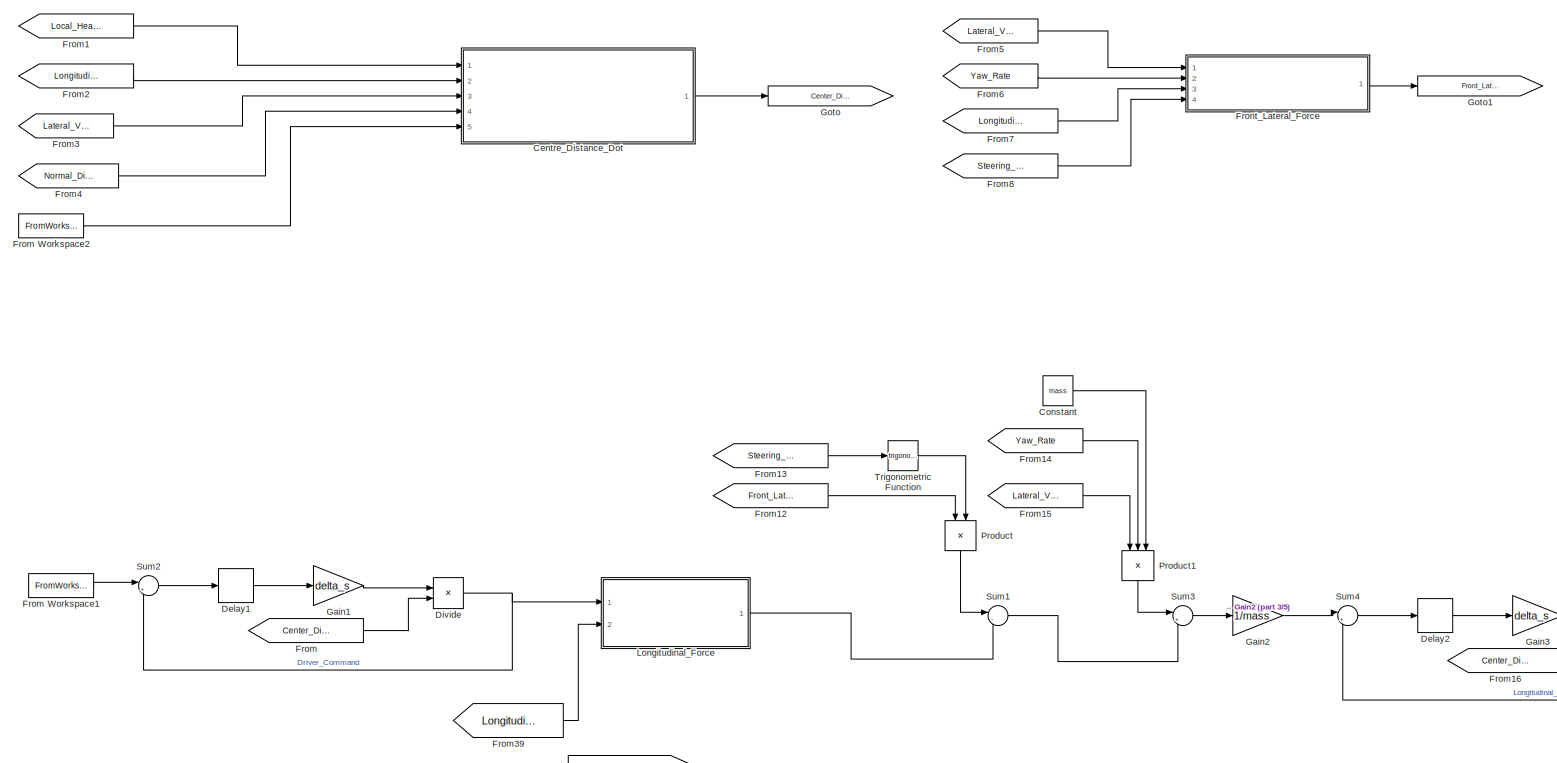
[diagram: root canvas - part 1/5, top left region]
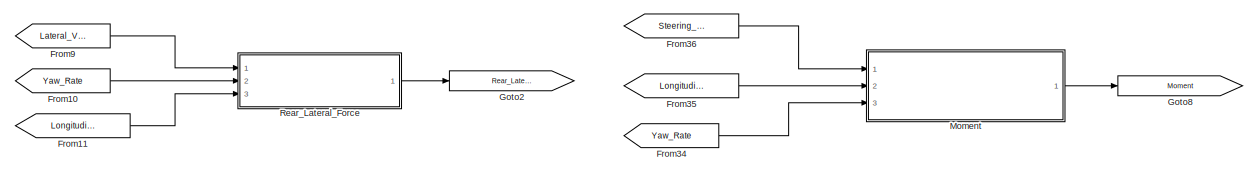
[diagram: root canvas - part 2/5, top right region]
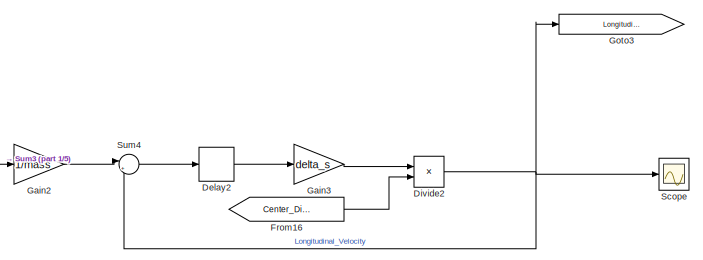
[diagram: root canvas - part 3/5, central region]
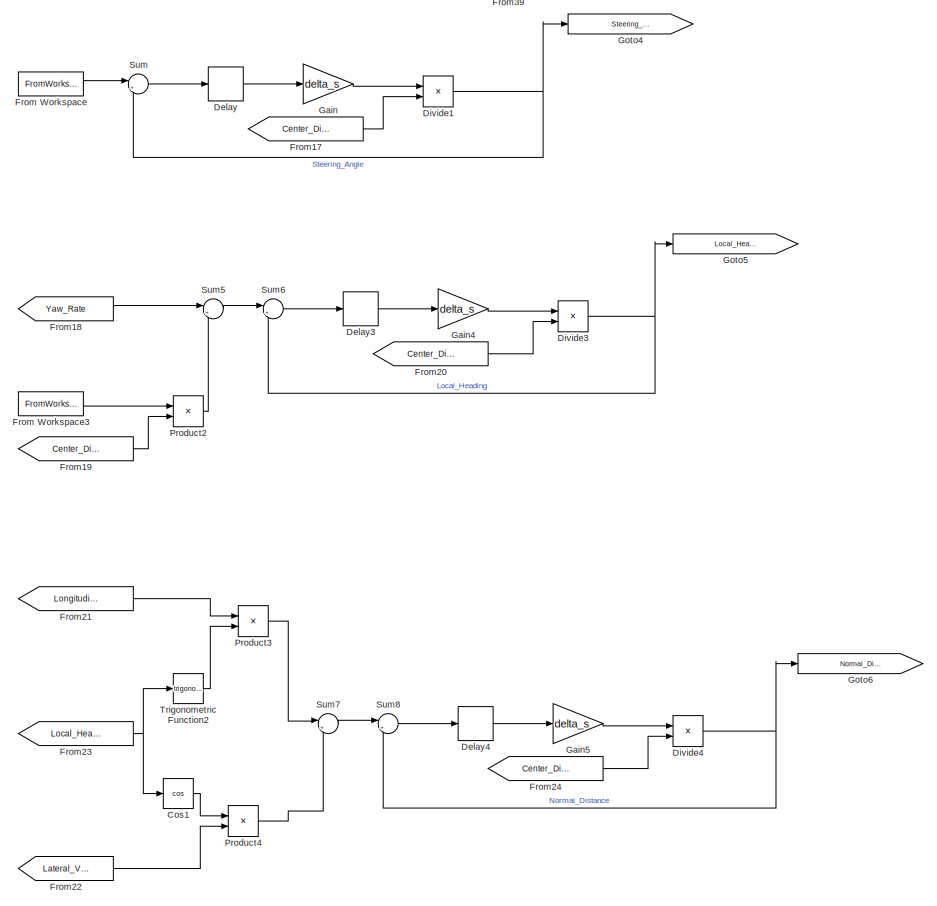
[diagram: root canvas - part 4/5, bottom left region]
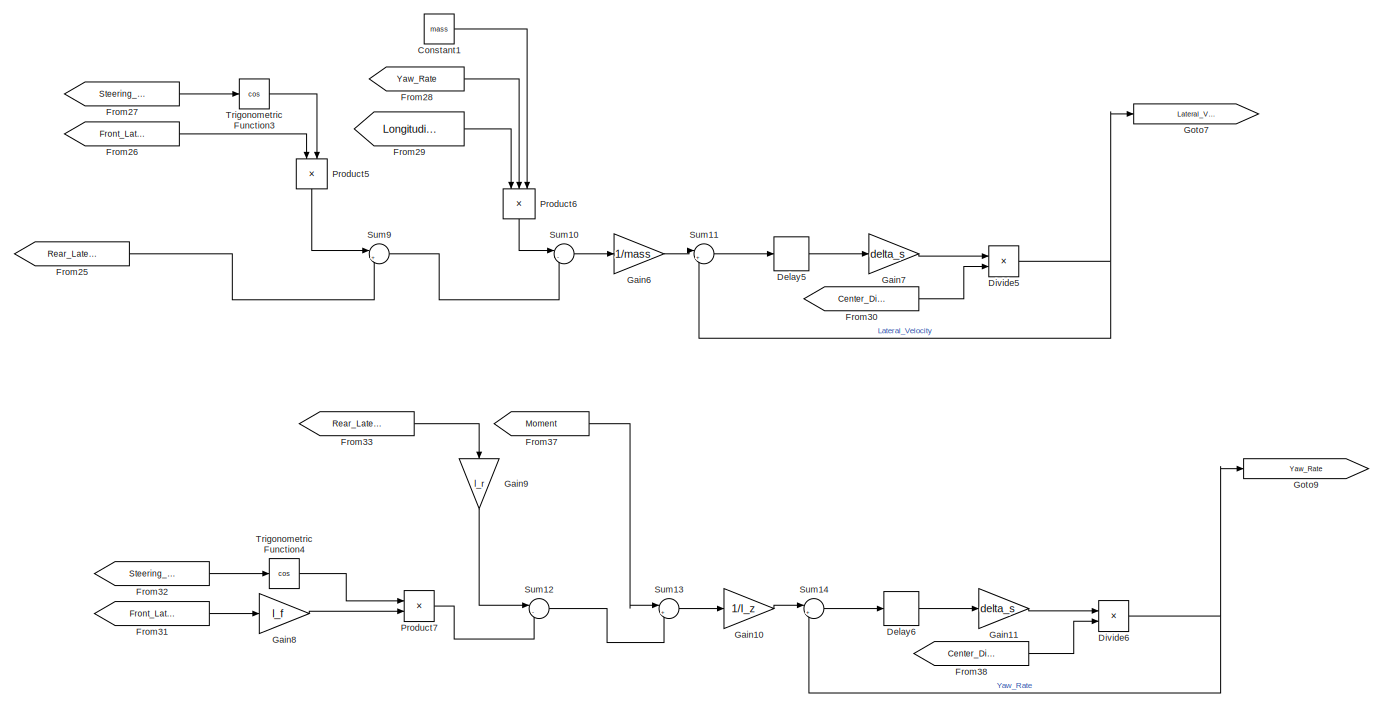
[diagram: root canvas - part 5/5, bottom center region]
MODEL slx_0888dd0f9eb8
KIND model
CONFIG AbsTol = auto
CONFIG EnableMultiTasking = off
CONFIG FixedStep = auto
CONFIG MaxStep = auto
CONFIG MinStep = auto
CONFIG RelTol = 1e-3
CONFIG SampleTimeConstraint = Unconstrained
CONFIG SolverName = VariableStepAuto
CONFIG StartTime = 0.0
CONFIG StopTime = 10.0
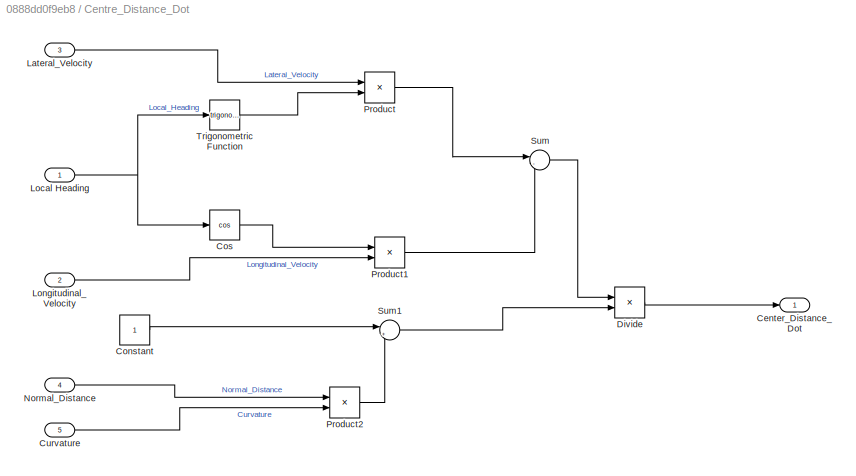
BLOCK [SubSystem] Centre_Distance_Dot
  Ports = [5, 1]
  RequestExecContextInheritance = off
BLOCK [Outport] Centre_Distance_Dot/Center_Distance_Dot
BLOCK [Constant] Centre_Distance_Dot/Constant
BLOCK [Trigonometry] Centre_Distance_Dot/Cos
  Operator = cos
  Ports = [1, 1]
BLOCK [Inport] Centre_Distance_Dot/Curvature
  Port = 5
BLOCK [Product] Centre_Distance_Dot/Divide
  Inputs = */
  Ports = [2, 1]
BLOCK [Inport] Centre_Distance_Dot/Lateral_Velocity
  Port = 3
BLOCK [Inport] Centre_Distance_Dot/Local Heading
BLOCK [Inport] Centre_Distance_Dot/Longitudinal_Velocity
  Port = 2
BLOCK [Inport] Centre_Distance_Dot/Normal_Distance
  Port = 4
BLOCK [Product] Centre_Distance_Dot/Product
  Ports = [2, 1]
BLOCK [Product] Centre_Distance_Dot/Product1
  Ports = [2, 1]
BLOCK [Product] Centre_Distance_Dot/Product2
  Ports = [2, 1]
BLOCK [Sum] Centre_Distance_Dot/Sum
  Inputs = |-+
  Ports = [2, 1]
BLOCK [Sum] Centre_Distance_Dot/Sum1
  Inputs = |+-
  Ports = [2, 1]
BLOCK [Trigonometry] Centre_Distance_Dot/Trigonometric Function
  Ports = [1, 1]
BLOCK [Constant] Constant
  Value = mass
BLOCK [Constant] Constant1
  Value = mass
BLOCK [Trigonometry] Cos1
  Operator = cos
  Ports = [1, 1]
BLOCK [Delay] Delay
  DelayLength = 1
  InitialCondition = 0
  InputPortMap = u0
  Ports = [1, 1]
BLOCK [Delay] Delay1
  DelayLength = 1
  InitialCondition = 0
  InputPortMap = u0
  Ports = [1, 1]
BLOCK [Delay] Delay2
  DelayLength = 1
  InitialCondition = 0
  InputPortMap = u0
  Ports = [1, 1]
BLOCK [Delay] Delay3
  DelayLength = 1
  InitialCondition = 0
  InputPortMap = u0
  Ports = [1, 1]
BLOCK [Delay] Delay4
  DelayLength = 1
  InitialCondition = 0
  InputPortMap = u0
  Ports = [1, 1]
BLOCK [Delay] Delay5
  DelayLength = 1
  InitialCondition = 0
  InputPortMap = u0
  Ports = [1, 1]
BLOCK [Delay] Delay6
  DelayLength = 1
  InitialCondition = 0
  InputPortMap = u0
  Ports = [1, 1]
BLOCK [Product] Divide
  Inputs = */
  Ports = [2, 1]
BLOCK [Product] Divide1
  Inputs = */
  Ports = [2, 1]
BLOCK [Product] Divide2
  Inputs = */
  Ports = [2, 1]
BLOCK [Product] Divide3
  Inputs = */
  Ports = [2, 1]
BLOCK [Product] Divide4
  Inputs = */
  Ports = [2, 1]
BLOCK [Product] Divide5
  Inputs = */
  Ports = [2, 1]
BLOCK [Product] Divide6
  Inputs = */
  Ports = [2, 1]
BLOCK [From] From
  GotoTag = Center_Distance_Dot
BLOCK [FromWorkspace] From Workspace
  VariableName = delta_steer
BLOCK [FromWorkspace] From Workspace1
  VariableName = delta_T
BLOCK [FromWorkspace] From Workspace2
  VariableName = Curvature
BLOCK [FromWorkspace] From Workspace3
  VariableName = Curvature
BLOCK [From] From1
  GotoTag = Local_Heading
BLOCK [From] From10
  GotoTag = Yaw_Rate
BLOCK [From] From11
  GotoTag = Longitudinal_Velocity
BLOCK [From] From12
  GotoTag = Front_Lateral_Force
BLOCK [From] From13
  GotoTag = Steering_Angle
BLOCK [From] From14
  GotoTag = Yaw_Rate
BLOCK [From] From15
  GotoTag = Lateral_Velocity
BLOCK [From] From16
  GotoTag = Center_Distance_Dot
BLOCK [From] From17
  GotoTag = Center_Distance_Dot
BLOCK [From] From18
  GotoTag = Yaw_Rate
BLOCK [From] From19
  GotoTag = Center_Distance_Dot
BLOCK [From] From2
  GotoTag = Longitudinal_Velocity
BLOCK [From] From20
  GotoTag = Center_Distance_Dot
BLOCK [From] From21
  GotoTag = Longitudinal_Velocity
BLOCK [From] From22
  GotoTag = Lateral_Velocity
BLOCK [From] From23
  GotoTag = Local_Heading
BLOCK [From] From24
  GotoTag = Center_Distance_Dot
BLOCK [From] From25
  GotoTag = Rear_Lateral_Force
BLOCK [From] From26
  GotoTag = Front_Lateral_Force
BLOCK [From] From27
  GotoTag = Steering_Angle
BLOCK [From] From28
  GotoTag = Yaw_Rate
BLOCK [From] From29
  GotoTag = Longitudinal_Velocity
BLOCK [From] From3
  GotoTag = Lateral_Velocity
BLOCK [From] From30
  GotoTag = Center_Distance_Dot
BLOCK [From] From31
  GotoTag = Front_Lateral_Force
BLOCK [From] From32
  GotoTag = Steering_Angle
BLOCK [From] From33
  GotoTag = Rear_Lateral_Force
BLOCK [From] From34
  GotoTag = Yaw_Rate
BLOCK [From] From35
  GotoTag = Longitudinal_Velocity
BLOCK [From] From36
  GotoTag = Steering_Angle
BLOCK [From] From37
  GotoTag = Moment
BLOCK [From] From38
  GotoTag = Center_Distance_Dot
BLOCK [From] From39
  GotoTag = Longitudinal_Velocity
BLOCK [From] From4
  GotoTag = Normal_Distance
BLOCK [From] From5
  GotoTag = Lateral_Velocity
BLOCK [From] From6
  GotoTag = Yaw_Rate
BLOCK [From] From7
  GotoTag = Longitudinal_Velocity
BLOCK [From] From8
  GotoTag = Steering_Angle
BLOCK [From] From9
  GotoTag = Lateral_Velocity
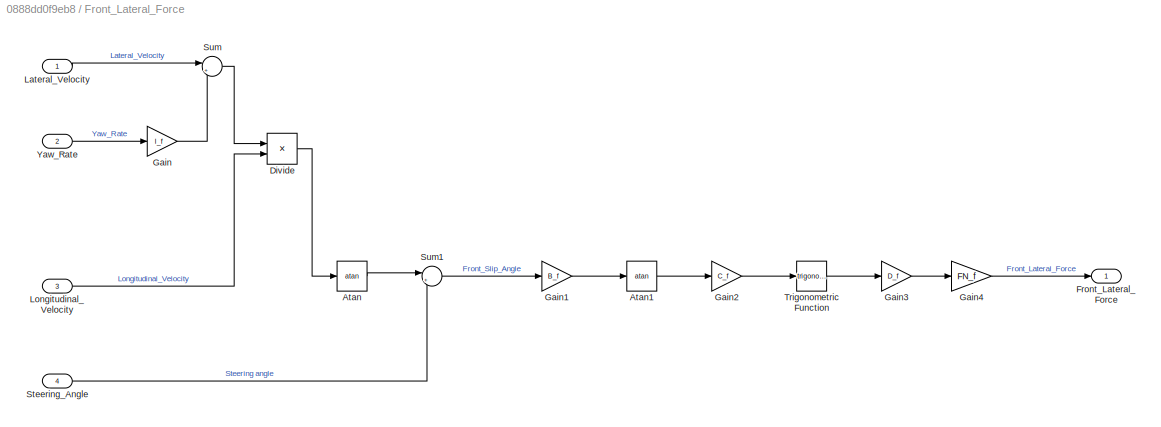
BLOCK [SubSystem] Front_Lateral_Force
  Ports = [4, 1]
  RequestExecContextInheritance = off
BLOCK [Trigonometry] Front_Lateral_Force/Atan
  Operator = atan
  Ports = [1, 1]
BLOCK [Trigonometry] Front_Lateral_Force/Atan1
  Operator = atan
  Ports = [1, 1]
BLOCK [Product] Front_Lateral_Force/Divide
  Inputs = */
  Ports = [2, 1]
BLOCK [Outport] Front_Lateral_Force/Front_Lateral_Force
BLOCK [Gain] Front_Lateral_Force/Gain
  Gain = l_f
BLOCK [Gain] Front_Lateral_Force/Gain1
  Gain = B_f
BLOCK [Gain] Front_Lateral_Force/Gain2
  Gain = C_f
BLOCK [Gain] Front_Lateral_Force/Gain3
  Gain = D_f
BLOCK [Gain] Front_Lateral_Force/Gain4
  Gain = FN_f
BLOCK [Inport] Front_Lateral_Force/Lateral_Velocity
BLOCK [Inport] Front_Lateral_Force/Longitudinal_Velocity
  Port = 3
BLOCK [Inport] Front_Lateral_Force/Steering_Angle
  Port = 4
BLOCK [Sum] Front_Lateral_Force/Sum
  Inputs = |++
  Ports = [2, 1]
BLOCK [Sum] Front_Lateral_Force/Sum1
  Inputs = |+-
  Ports = [2, 1]
BLOCK [Trigonometry] Front_Lateral_Force/Trigonometric Function
  Ports = [1, 1]
BLOCK [Inport] Front_Lateral_Force/Yaw_Rate
  Port = 2
BLOCK [Gain] Gain
  Gain = delta_s
BLOCK [Gain] Gain1
  Gain = delta_s
BLOCK [Gain] Gain10
  Gain = 1/I_z
BLOCK [Gain] Gain11
  Gain = delta_s
BLOCK [Gain] Gain2
  Gain = 1/mass
BLOCK [Gain] Gain3
  Gain = delta_s
BLOCK [Gain] Gain4
  Gain = delta_s
BLOCK [Gain] Gain5
  Gain = delta_s
BLOCK [Gain] Gain6
  Gain = 1/mass
BLOCK [Gain] Gain7
  Gain = delta_s
BLOCK [Gain] Gain8
  Gain = l_f
BLOCK [Gain] Gain9
  Gain = l_r
  NameLocation = left
BLOCK [Goto] Goto
  GotoTag = Center_Distance_Dot
BLOCK [Goto] Goto1
  GotoTag = Front_Lateral_Force
BLOCK [Goto] Goto2
  GotoTag = Rear_Lateral_Force
BLOCK [Goto] Goto3
  GotoTag = Longitudinal_Velocity
BLOCK [Goto] Goto4
  GotoTag = Steering_Angle
BLOCK [Goto] Goto5
  GotoTag = Local_Heading
BLOCK [Goto] Goto6
  GotoTag = Normal_Distance
BLOCK [Goto] Goto7
  GotoTag = Lateral_Velocity
BLOCK [Goto] Goto8
  GotoTag = Moment
BLOCK [Goto] Goto9
  GotoTag = Yaw_Rate
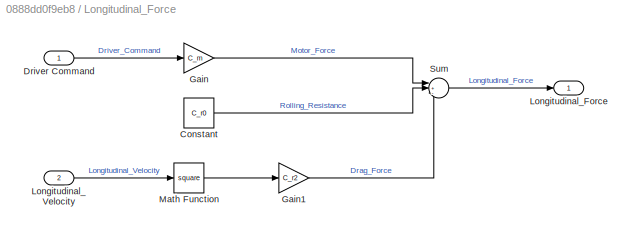
BLOCK [SubSystem] Longitudinal_Force
  Ports = [2, 1]
  RequestExecContextInheritance = off
BLOCK [Constant] Longitudinal_Force/Constant
  Value = C_r0
BLOCK [Inport] Longitudinal_Force/Driver Command
BLOCK [Gain] Longitudinal_Force/Gain
  Gain = C_m
BLOCK [Gain] Longitudinal_Force/Gain1
  Gain = C_r2
BLOCK [Outport] Longitudinal_Force/Longitudinal_Force
BLOCK [Inport] Longitudinal_Force/Longitudinal_Velocity
  Port = 2
BLOCK [Math] Longitudinal_Force/Math Function
  Operator = square
  Ports = [1, 1]
BLOCK [Sum] Longitudinal_Force/Sum
  Inputs = |+--
  Ports = [3, 1]
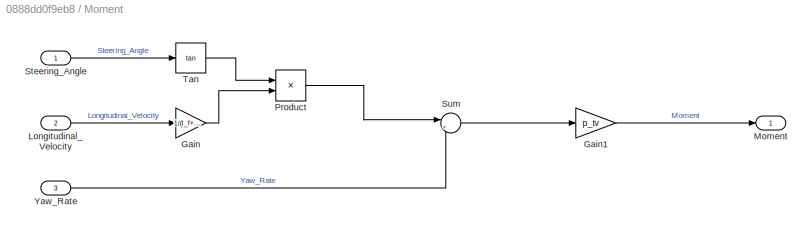
BLOCK [SubSystem] Moment
  Ports = [3, 1]
  RequestExecContextInheritance = off
BLOCK [Gain] Moment/Gain
  Gain = 1/(l_f+l_r)
BLOCK [Gain] Moment/Gain1
  Gain = p_tv
BLOCK [Inport] Moment/Longitudinal_Velocity
  Port = 2
BLOCK [Outport] Moment/Moment
BLOCK [Product] Moment/Product
  Ports = [2, 1]
BLOCK [Inport] Moment/Steering_Angle
BLOCK [Sum] Moment/Sum
  Inputs = |++
  Ports = [2, 1]
BLOCK [Trigonometry] Moment/Tan
  Operator = tan
  Ports = [1, 1]
BLOCK [Inport] Moment/Yaw_Rate
  Port = 3
BLOCK [Product] Product
  NameLocation = left
  Ports = [2, 1]
BLOCK [Product] Product1
  Inputs = 3
  NameLocation = left
  Ports = [3, 1]
BLOCK [Product] Product2
  Ports = [2, 1]
BLOCK [Product] Product3
  Ports = [2, 1]
BLOCK [Product] Product4
  Ports = [2, 1]
BLOCK [Product] Product5
  NameLocation = left
  Ports = [2, 1]
BLOCK [Product] Product6
  Inputs = 3
  NameLocation = left
  Ports = [3, 1]
BLOCK [Product] Product7
  Ports = [2, 1]
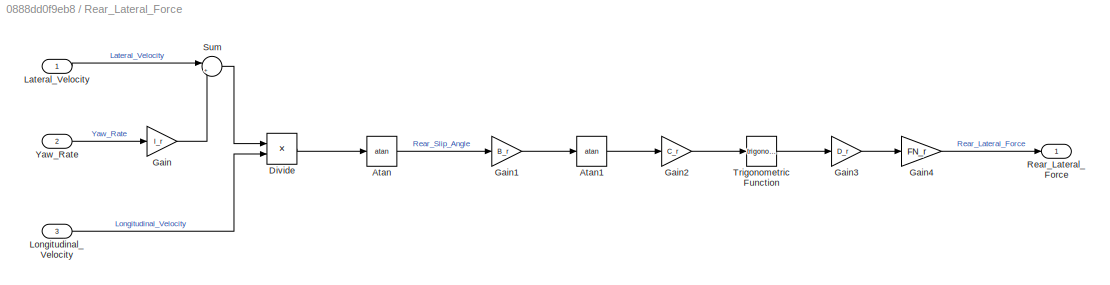
BLOCK [SubSystem] Rear_Lateral_Force
  Ports = [3, 1]
  RequestExecContextInheritance = off
BLOCK [Trigonometry] Rear_Lateral_Force/Atan
  Operator = atan
  Ports = [1, 1]
BLOCK [Trigonometry] Rear_Lateral_Force/Atan1
  Operator = atan
  Ports = [1, 1]
BLOCK [Product] Rear_Lateral_Force/Divide
  Inputs = */
  Ports = [2, 1]
BLOCK [Gain] Rear_Lateral_Force/Gain
  Gain = l_r
BLOCK [Gain] Rear_Lateral_Force/Gain1
  Gain = B_r
BLOCK [Gain] Rear_Lateral_Force/Gain2
  Gain = C_r
BLOCK [Gain] Rear_Lateral_Force/Gain3
  Gain = D_r
BLOCK [Gain] Rear_Lateral_Force/Gain4
  Gain = FN_r
BLOCK [Inport] Rear_Lateral_Force/Lateral_Velocity
BLOCK [Inport] Rear_Lateral_Force/Longitudinal_Velocity
  Port = 3
BLOCK [Outport] Rear_Lateral_Force/Rear_Lateral_Force
BLOCK [Sum] Rear_Lateral_Force/Sum
  Inputs = |++
  Ports = [2, 1]
BLOCK [Trigonometry] Rear_Lateral_Force/Trigonometric Function
  Ports = [1, 1]
BLOCK [Inport] Rear_Lateral_Force/Yaw_Rate 
  Port = 2
BLOCK [Scope] Scope
  Floating = off
  NumInputPorts = 1
  Ports = [1]
  ScopeSpecificationString = Simulink.scopes.TimeScopeBlockCfg('CurrentConfiguration', extmgr.ConfigurationSet(extmgr.Configuration('Core','General UI',true),extmgr.Configuration('Core','Source UI',true),extmgr.Configuration('Sources','WiredSimulink',true),extmgr.Configuration('Visuals','Time Domain',true,'SerializedDisplays',{struct('MinYLimReal','-10','MaxYLimReal','10','YLabelReal','','MinYLimMag','0','MaxYLimMag','10','Le...<+742ch>
BLOCK [Sum] Sum
  Inputs = |++
  Ports = [2, 1]
BLOCK [Sum] Sum1
  Inputs = |-+
  Ports = [2, 1]
BLOCK [Sum] Sum10
  Inputs = |-+
  Ports = [2, 1]
BLOCK [Sum] Sum11
  Inputs = |++
  Ports = [2, 1]
BLOCK [Sum] Sum12
  Inputs = |-+
  Ports = [2, 1]
BLOCK [Sum] Sum13
  Inputs = |++
  Ports = [2, 1]
BLOCK [Sum] Sum14
  Inputs = |++
  Ports = [2, 1]
BLOCK [Sum] Sum2
  Inputs = |++
  Ports = [2, 1]
BLOCK [Sum] Sum3
  Inputs = |++
  Ports = [2, 1]
BLOCK [Sum] Sum4
  Inputs = |++
  Ports = [2, 1]
BLOCK [Sum] Sum5
  Inputs = |++
  Ports = [2, 1]
BLOCK [Sum] Sum6
  Inputs = |++
  Ports = [2, 1]
BLOCK [Sum] Sum7
  Inputs = |++
  Ports = [2, 1]
BLOCK [Sum] Sum8
  Inputs = |++
  Ports = [2, 1]
BLOCK [Sum] Sum9
  Inputs = |++
  Ports = [2, 1]
BLOCK [Trigonometry] Trigonometric Function
  Ports = [1, 1]
BLOCK [Trigonometry] Trigonometric Function2
  Ports = [1, 1]
BLOCK [Trigonometry] Trigonometric Function3
  Operator = cos
  Ports = [1, 1]
BLOCK [Trigonometry] Trigonometric Function4
  Operator = cos
  Ports = [1, 1]
LINE Centre_Distance_Dot/Constant:1 -> Centre_Distance_Dot/Sum1:1
LINE Centre_Distance_Dot/Cos:1 -> Centre_Distance_Dot/Product1:1
LINE Centre_Distance_Dot/Curvature:1 -> Centre_Distance_Dot/Product2:2
LINE Centre_Distance_Dot/Divide:1 -> Centre_Distance_Dot/Center_Distance_Dot:1
LINE Centre_Distance_Dot/Lateral_Velocity:1 -> Centre_Distance_Dot/Product:1
NET Centre_Distance_Dot/Local Heading:1 -> Centre_Distance_Dot/Cos:1, Centre_Distance_Dot/Trigonometric Function:1
LINE Centre_Distance_Dot/Longitudinal_Velocity:1 -> Centre_Distance_Dot/Product1:2
LINE Centre_Distance_Dot/Normal_Distance:1 -> Centre_Distance_Dot/Product2:1
LINE Centre_Distance_Dot/Product1:1 -> Centre_Distance_Dot/Sum:2
LINE Centre_Distance_Dot/Product2:1 -> Centre_Distance_Dot/Sum1:2
LINE Centre_Distance_Dot/Product:1 -> Centre_Distance_Dot/Sum:1
LINE Centre_Distance_Dot/Sum1:1 -> Centre_Distance_Dot/Divide:2
LINE Centre_Distance_Dot/Sum:1 -> Centre_Distance_Dot/Divide:1
LINE Centre_Distance_Dot/Trigonometric Function:1 -> Centre_Distance_Dot/Product:2
LINE Centre_Distance_Dot:1 -> Goto:1
LINE Constant1:1 -> Product6:3
LINE Constant:1 -> Product1:3
LINE Cos1:1 -> Product4:1
LINE Delay1:1 -> Gain1:1
LINE Delay2:1 -> Gain3:1
LINE Delay3:1 -> Gain4:1
LINE Delay4:1 -> Gain5:1
LINE Delay5:1 -> Gain7:1
LINE Delay6:1 -> Gain11:1
LINE Delay:1 -> Gain:1
NET Divide1:1 -> Goto4:1, Sum:2
NET Divide2:1 -> Goto3:1, Scope:1, Sum4:2
NET Divide3:1 -> Goto5:1, Sum6:2
NET Divide4:1 -> Goto6:1, Sum8:2
NET Divide5:1 -> Goto7:1, Sum11:2
NET Divide6:1 -> Goto9:1, Sum14:2
NET Divide:1 -> Longitudinal_Force:1, Sum2:2
LINE From Workspace1:1 -> Sum2:1
LINE From Workspace2:1 -> Centre_Distance_Dot:5
LINE From Workspace3:1 -> Product2:1
LINE From Workspace:1 -> Sum:1
LINE From10:1 -> Rear_Lateral_Force:2
LINE From11:1 -> Rear_Lateral_Force:3
LINE From12:1 -> Product:1
LINE From13:1 -> Trigonometric Function:1
LINE From14:1 -> Product1:2
LINE From15:1 -> Product1:1
LINE From16:1 -> Divide2:2
LINE From17:1 -> Divide1:2
LINE From18:1 -> Sum5:1
LINE From19:1 -> Product2:2
LINE From1:1 -> Centre_Distance_Dot:1
LINE From20:1 -> Divide3:2
LINE From21:1 -> Product3:1
LINE From22:1 -> Product4:2
NET From23:1 -> Cos1:1, Trigonometric Function2:1
LINE From24:1 -> Divide4:2
LINE From25:1 -> Sum9:2
LINE From26:1 -> Product5:1
LINE From27:1 -> Trigonometric Function3:1
LINE From28:1 -> Product6:2
LINE From29:1 -> Product6:1
LINE From2:1 -> Centre_Distance_Dot:2
LINE From30:1 -> Divide5:2
LINE From31:1 -> Gain8:1
LINE From32:1 -> Trigonometric Function4:1
LINE From33:1 -> Gain9:1
LINE From34:1 -> Moment:3
LINE From35:1 -> Moment:2
LINE From36:1 -> Moment:1
LINE From37:1 -> Sum13:1
LINE From38:1 -> Divide6:2
LINE From39:1 -> Longitudinal_Force:2
LINE From3:1 -> Centre_Distance_Dot:3
LINE From4:1 -> Centre_Distance_Dot:4
LINE From5:1 -> Front_Lateral_Force:1
LINE From6:1 -> Front_Lateral_Force:2
LINE From7:1 -> Front_Lateral_Force:3
LINE From8:1 -> Front_Lateral_Force:4
LINE From9:1 -> Rear_Lateral_Force:1
LINE From:1 -> Divide:2
LINE Front_Lateral_Force/Atan1:1 -> Front_Lateral_Force/Gain2:1
LINE Front_Lateral_Force/Atan:1 -> Front_Lateral_Force/Sum1:1
LINE Front_Lateral_Force/Divide:1 -> Front_Lateral_Force/Atan:1
LINE Front_Lateral_Force/Gain1:1 -> Front_Lateral_Force/Atan1:1
LINE Front_Lateral_Force/Gain2:1 -> Front_Lateral_Force/Trigonometric Function:1
LINE Front_Lateral_Force/Gain3:1 -> Front_Lateral_Force/Gain4:1
LINE Front_Lateral_Force/Gain4:1 -> Front_Lateral_Force/Front_Lateral_Force:1
LINE Front_Lateral_Force/Gain:1 -> Front_Lateral_Force/Sum:2
LINE Front_Lateral_Force/Lateral_Velocity:1 -> Front_Lateral_Force/Sum:1
LINE Front_Lateral_Force/Longitudinal_Velocity:1 -> Front_Lateral_Force/Divide:2
LINE Front_Lateral_Force/Steering_Angle:1 -> Front_Lateral_Force/Sum1:2
LINE Front_Lateral_Force/Sum1:1 -> Front_Lateral_Force/Gain1:1
LINE Front_Lateral_Force/Sum:1 -> Front_Lateral_Force/Divide:1
LINE Front_Lateral_Force/Trigonometric Function:1 -> Front_Lateral_Force/Gain3:1
LINE Front_Lateral_Force/Yaw_Rate:1 -> Front_Lateral_Force/Gain:1
LINE Front_Lateral_Force:1 -> Goto1:1
LINE Gain10:1 -> Sum14:1
LINE Gain11:1 -> Divide6:1
LINE Gain1:1 -> Divide:1
LINE Gain2:1 -> Sum4:1
LINE Gain3:1 -> Divide2:1
LINE Gain4:1 -> Divide3:1
LINE Gain5:1 -> Divide4:1
LINE Gain6:1 -> Sum11:1
LINE Gain7:1 -> Divide5:1
LINE Gain8:1 -> Product7:2
LINE Gain9:1 -> Sum12:1
LINE Gain:1 -> Divide1:1
LINE Longitudinal_Force/Constant:1 -> Longitudinal_Force/Sum:2
LINE Longitudinal_Force/Driver Command:1 -> Longitudinal_Force/Gain:1
LINE Longitudinal_Force/Gain1:1 -> Longitudinal_Force/Sum:3
LINE Longitudinal_Force/Gain:1 -> Longitudinal_Force/Sum:1
LINE Longitudinal_Force/Longitudinal_Velocity:1 -> Longitudinal_Force/Math Function:1
LINE Longitudinal_Force/Math Function:1 -> Longitudinal_Force/Gain1:1
LINE Longitudinal_Force/Sum:1 -> Longitudinal_Force/Longitudinal_Force:1
LINE Longitudinal_Force:1 -> Sum1:2
LINE Moment/Gain1:1 -> Moment/Moment:1
LINE Moment/Gain:1 -> Moment/Product:2
LINE Moment/Longitudinal_Velocity:1 -> Moment/Gain:1
LINE Moment/Product:1 -> Moment/Sum:1
LINE Moment/Steering_Angle:1 -> Moment/Tan:1
LINE Moment/Sum:1 -> Moment/Gain1:1
LINE Moment/Tan:1 -> Moment/Product:1
LINE Moment/Yaw_Rate:1 -> Moment/Sum:2
LINE Moment:1 -> Goto8:1
LINE Product1:1 -> Sum3:1
LINE Product2:1 -> Sum5:2
LINE Product3:1 -> Sum7:1
LINE Product4:1 -> Sum7:2
LINE Product5:1 -> Sum9:1
LINE Product6:1 -> Sum10:1
LINE Product7:1 -> Sum12:2
LINE Product:1 -> Sum1:1
LINE Rear_Lateral_Force/Atan1:1 -> Rear_Lateral_Force/Gain2:1
LINE Rear_Lateral_Force/Atan:1 -> Rear_Lateral_Force/Gain1:1
LINE Rear_Lateral_Force/Divide:1 -> Rear_Lateral_Force/Atan:1
LINE Rear_Lateral_Force/Gain1:1 -> Rear_Lateral_Force/Atan1:1
LINE Rear_Lateral_Force/Gain2:1 -> Rear_Lateral_Force/Trigonometric Function:1
LINE Rear_Lateral_Force/Gain3:1 -> Rear_Lateral_Force/Gain4:1
LINE Rear_Lateral_Force/Gain4:1 -> Rear_Lateral_Force/Rear_Lateral_Force:1
LINE Rear_Lateral_Force/Gain:1 -> Rear_Lateral_Force/Sum:2
LINE Rear_Lateral_Force/Lateral_Velocity:1 -> Rear_Lateral_Force/Sum:1
LINE Rear_Lateral_Force/Longitudinal_Velocity:1 -> Rear_Lateral_Force/Divide:2
LINE Rear_Lateral_Force/Sum:1 -> Rear_Lateral_Force/Divide:1
LINE Rear_Lateral_Force/Trigonometric Function:1 -> Rear_Lateral_Force/Gain3:1
LINE Rear_Lateral_Force/Yaw_Rate :1 -> Rear_Lateral_Force/Gain:1
LINE Rear_Lateral_Force:1 -> Goto2:1
LINE Sum10:1 -> Gain6:1
LINE Sum11:1 -> Delay5:1
LINE Sum12:1 -> Sum13:2
LINE Sum13:1 -> Gain10:1
LINE Sum14:1 -> Delay6:1
LINE Sum1:1 -> Sum3:2
LINE Sum2:1 -> Delay1:1
LINE Sum3:1 -> Gain2:1
LINE Sum4:1 -> Delay2:1
LINE Sum5:1 -> Sum6:1
LINE Sum6:1 -> Delay3:1
LINE Sum7:1 -> Sum8:1
LINE Sum8:1 -> Delay4:1
LINE Sum9:1 -> Sum10:2
LINE Sum:1 -> Delay:1
LINE Trigonometric Function2:1 -> Product3:2
LINE Trigonometric Function3:1 -> Product5:2
LINE Trigonometric Function4:1 -> Product7:1
LINE Trigonometric Function:1 -> Product:2
note: NET lines group one-source signal fan-out (src -> all destinations, sorted); 1:1 wires keep LINE
